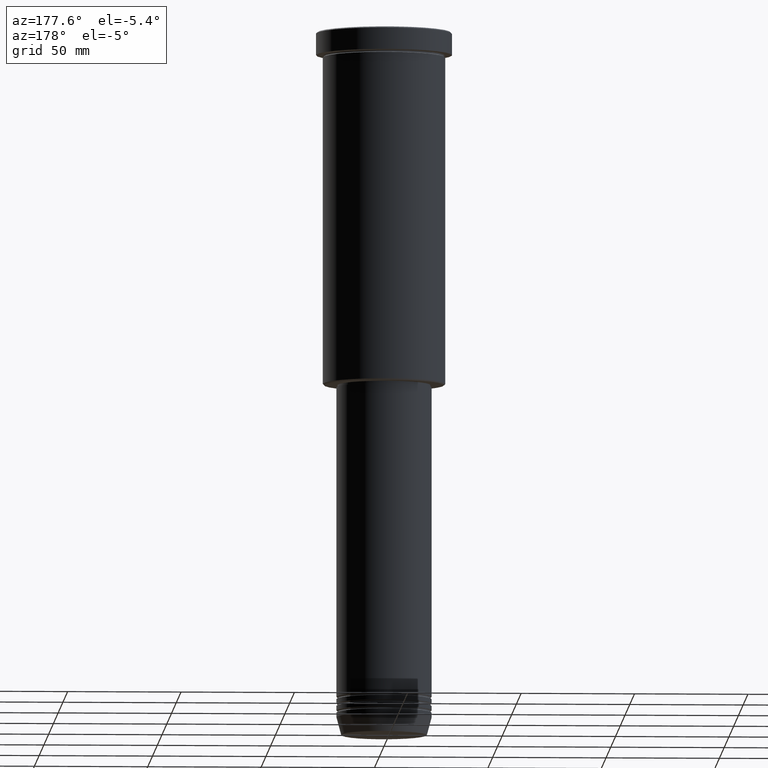
[diagram: clean part render]
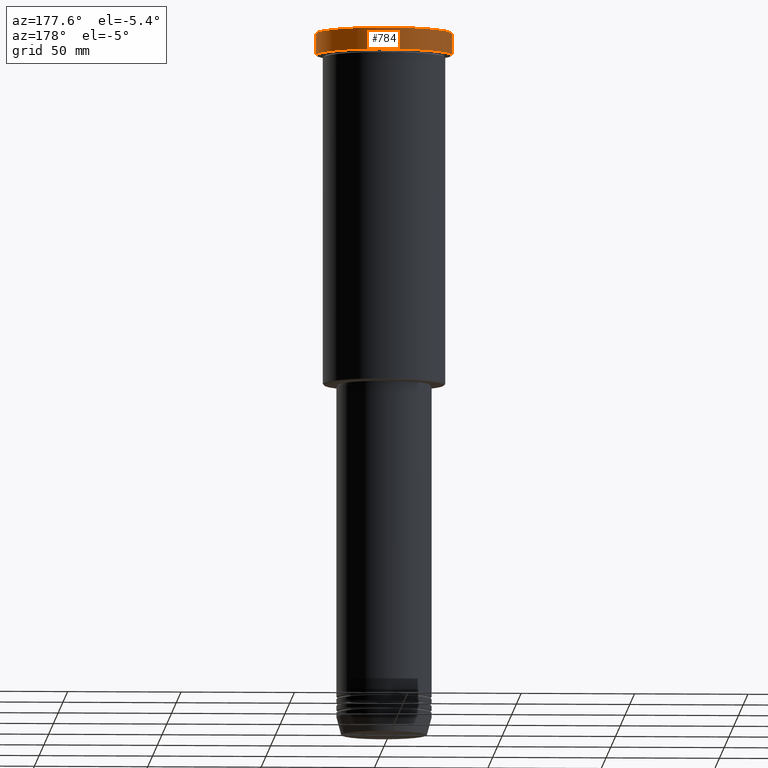
[diagram: same view with one face highlighted and labeled with its STEP entity id]
A machine part, auxiliary view. The second image highlights one B-rep face of the part: STEP entity #784.
In plain terms, the highlighted cylindrical surface (partial cylindrical patch) has radius 30 mm, axis along (-0, -0, 1).
Its self-contained STEP definition (entity closure, byte-faithful):
#30 = CARTESIAN_POINT ( 'NONE',  ( 30.00000000000000000, 0.000000000000000000, 0.000000000000000000 ) ) ;
#37 = DIRECTION ( 'NONE',  ( -0.000000000000000000, -0.000000000000000000, 1.000000000000000000 ) ) ;
#58 = DIRECTION ( 'NONE',  ( 0.000000000000000000, 0.000000000000000000, -1.000000000000000000 ) ) ;
#63 = CIRCLE ( 'NONE', #87, 30.00000000000000000 ) ;
#87 = AXIS2_PLACEMENT_3D ( 'NONE', #371, #58, #323 ) ;
#113 = VERTEX_POINT ( 'NONE', #970 ) ;
#148 = CIRCLE ( 'NONE', #1163, 30.00000000000000000 ) ;
#184 = CARTESIAN_POINT ( 'NONE',  ( 30.00000000000000000, 0.000000000000000000, -9.999999999999992895 ) ) ;
#294 = EDGE_CURVE ( 'NONE', #526, #564, #63, .T. ) ;
#310 = DIRECTION ( 'NONE',  ( 1.000000000000000000, 0.000000000000000000, 0.000000000000000000 ) ) ;
#323 = DIRECTION ( 'NONE',  ( 1.000000000000000000, 0.000000000000000000, 0.000000000000000000 ) ) ;
#349 = CYLINDRICAL_SURFACE ( 'NONE', #382, 30.00000000000000000 ) ;
#371 = CARTESIAN_POINT ( 'NONE',  ( 0.000000000000000000, 0.000000000000000000, -0.5000000000000073275 ) ) ;
#382 = AXIS2_PLACEMENT_3D ( 'NONE', #788, #622, #783 ) ;
#415 = CARTESIAN_POINT ( 'NONE',  ( 30.00000000000000000, 0.000000000000000000, -0.5000000000000073275 ) ) ;
#487 = DIRECTION ( 'NONE',  ( -0.000000000000000000, -0.000000000000000000, 1.000000000000000000 ) ) ;
#511 = VECTOR ( 'NONE', #37, 1000.000000000000000 ) ;
#521 = ORIENTED_EDGE ( 'NONE', *, *, #1047, .T. ) ;
#526 = VERTEX_POINT ( 'NONE', #595 ) ;
#564 = VERTEX_POINT ( 'NONE', #415 ) ;
#582 = EDGE_LOOP ( 'NONE', ( #820, #521, #855, #841 ) ) ;
#595 = CARTESIAN_POINT ( 'NONE',  ( -30.00000000000000000, 3.673940397442059178E-15, -0.5000000000000073275 ) ) ;
#609 = FACE_OUTER_BOUND ( 'NONE', #582, .T. ) ;
#622 = DIRECTION ( 'NONE',  ( -0.000000000000000000, -0.000000000000000000, 1.000000000000000000 ) ) ;
#647 = CARTESIAN_POINT ( 'NONE',  ( 0.000000000000000000, 0.000000000000000000, -9.999999999999992895 ) ) ;
#728 = VECTOR ( 'NONE', #1122, 1000.000000000000000 ) ;
#756 = CARTESIAN_POINT ( 'NONE',  ( -30.00000000000000000, 3.673940397442059178E-15, 0.000000000000000000 ) ) ;
#783 = DIRECTION ( 'NONE',  ( 1.000000000000000000, 0.000000000000000000, 0.000000000000000000 ) ) ;
#784 = ADVANCED_FACE ( 'NONE', ( #609 ), #349, .T. ) ;
#788 = CARTESIAN_POINT ( 'NONE',  ( 0.000000000000000000, 0.000000000000000000, 0.000000000000000000 ) ) ;
#803 = VERTEX_POINT ( 'NONE', #184 ) ;
#820 = ORIENTED_EDGE ( 'NONE', *, *, #1106, .T. ) ;
#841 = ORIENTED_EDGE ( 'NONE', *, *, #912, .F. ) ;
#843 = LINE ( 'NONE', #30, #511 ) ;
#855 = ORIENTED_EDGE ( 'NONE', *, *, #294, .T. ) ;
#912 = EDGE_CURVE ( 'NONE', #803, #564, #843, .T. ) ;
#970 = CARTESIAN_POINT ( 'NONE',  ( -30.00000000000000000, 3.673940397442059178E-15, -9.999999999999992895 ) ) ;
#1047 = EDGE_CURVE ( 'NONE', #113, #526, #1135, .T. ) ;
#1106 = EDGE_CURVE ( 'NONE', #803, #113, #148, .T. ) ;
#1122 = DIRECTION ( 'NONE',  ( -0.000000000000000000, -0.000000000000000000, 1.000000000000000000 ) ) ;
#1135 = LINE ( 'NONE', #756, #728 ) ;
#1163 = AXIS2_PLACEMENT_3D ( 'NONE', #647, #487, #310 ) ;